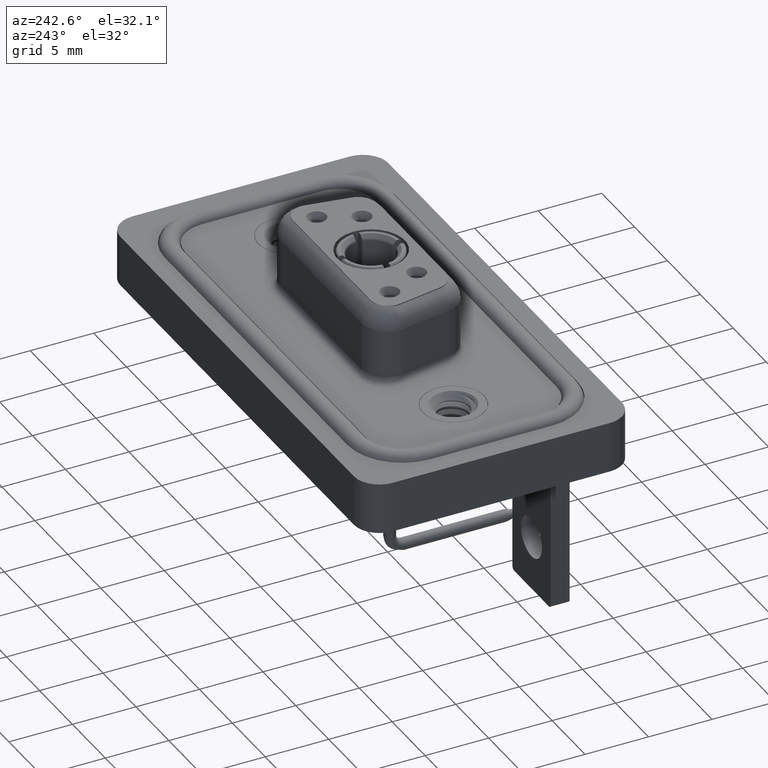
[diagram: clean part render]
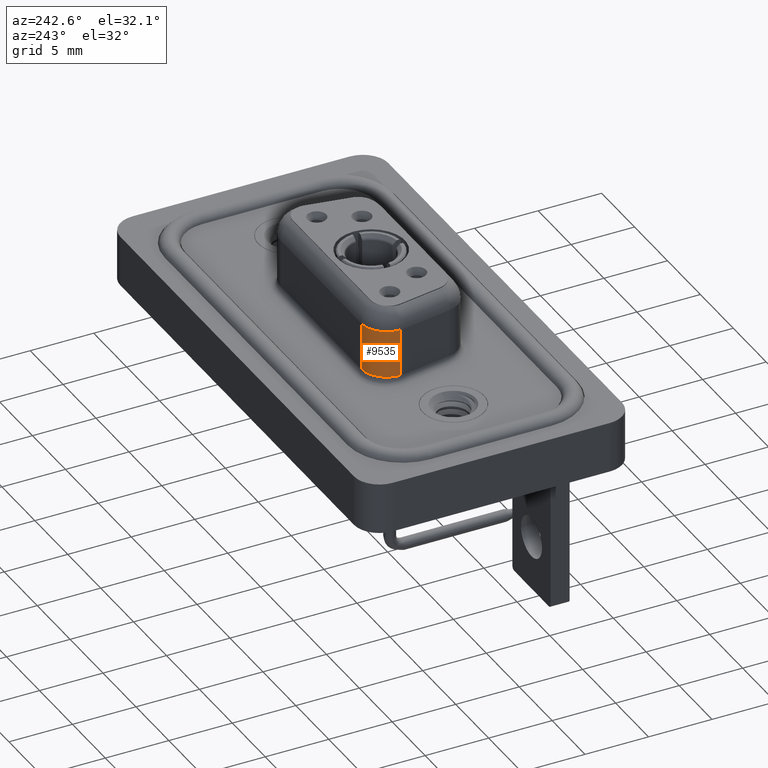
[diagram: same view with one face highlighted and labeled with its STEP entity id]
A machine part, auxiliary view. The second image highlights one B-rep face of the part: STEP entity #9535.
In plain terms, the highlighted cylindrical surface (edge-blend (fillet) strip) has radius 2 mm, axis along (-0, -0, -1).
Its self-contained STEP definition (entity closure, byte-faithful):
#453 = EDGE_CURVE ( 'NONE', #13363, #7746, #19176, .T. ) ;
#520 = CARTESIAN_POINT ( 'NONE',  ( 4.350000000000002309, 1.949999999999999512, 0.8999999999999998002 ) ) ;
#879 = LINE ( 'NONE', #4323, #5845 ) ;
#1258 = CARTESIAN_POINT ( 'NONE',  ( 6.350000000000002309, 1.949999999999999512, 6.400000000000000355 ) ) ;
#1387 = DIRECTION ( 'NONE',  ( 1.000000000000000000, 0.000000000000000000, 0.000000000000000000 ) ) ;
#2135 = VERTEX_POINT ( 'NONE', #12586 ) ;
#2955 = DIRECTION ( 'NONE',  ( -0.000000000000000000, -0.000000000000000000, -1.000000000000000000 ) ) ;
#3179 = CARTESIAN_POINT ( 'NONE',  ( 4.350000000000002309, 1.949999999999999512, 4.650000000000000355 ) ) ;
#3631 = DIRECTION ( 'NONE',  ( -1.000000000000000000, 0.000000000000000000, 0.000000000000000000 ) ) ;
#3835 = DIRECTION ( 'NONE',  ( -0.000000000000000000, -0.000000000000000000, -1.000000000000000000 ) ) ;
#4323 = CARTESIAN_POINT ( 'NONE',  ( 6.350000000000002309, 3.949999999999999734, 6.400000000000000355 ) ) ;
#5068 = AXIS2_PLACEMENT_3D ( 'NONE', #1258, #2955, #9317 ) ;
#5723 = ORIENTED_EDGE ( 'NONE', *, *, #12673, .T. ) ;
#5845 = VECTOR ( 'NONE', #10691, 1000.000000000000000 ) ;
#6072 = CARTESIAN_POINT ( 'NONE',  ( 4.350000000000002309, 1.949999999999999512, 6.400000000000000355 ) ) ;
#6288 = CYLINDRICAL_SURFACE ( 'NONE', #5068, 2.000000000000000000 ) ;
#7357 = CIRCLE ( 'NONE', #15039, 2.000000000000000000 ) ;
#7408 = EDGE_CURVE ( 'NONE', #20044, #7746, #14458, .T. ) ;
#7539 = EDGE_LOOP ( 'NONE', ( #7888, #5723, #17580, #13938 ) ) ;
#7746 = VERTEX_POINT ( 'NONE', #520 ) ;
#7888 = ORIENTED_EDGE ( 'NONE', *, *, #453, .F. ) ;
#8528 = CARTESIAN_POINT ( 'NONE',  ( 6.350000000000002309, 1.949999999999999512, 4.650000000000000355 ) ) ;
#9211 = FACE_OUTER_BOUND ( 'NONE', #7539, .T. ) ;
#9317 = DIRECTION ( 'NONE',  ( -1.000000000000000000, 0.000000000000000000, 0.000000000000000000 ) ) ;
#9340 = CARTESIAN_POINT ( 'NONE',  ( 6.350000000000002309, 1.949999999999999512, 0.8999999999999998002 ) ) ;
#9535 = ADVANCED_FACE ( 'NONE', ( #9211 ), #6288, .T. ) ;
#10691 = DIRECTION ( 'NONE',  ( -0.000000000000000000, -0.000000000000000000, -1.000000000000000000 ) ) ;
#11990 = CARTESIAN_POINT ( 'NONE',  ( 6.350000000000002309, 3.949999999999999734, 0.8999999999999998002 ) ) ;
#12586 = CARTESIAN_POINT ( 'NONE',  ( 6.350000000000002309, 3.949999999999999734, 4.650000000000000355 ) ) ;
#12673 = EDGE_CURVE ( 'NONE', #13363, #2135, #7357, .T. ) ;
#13363 = VERTEX_POINT ( 'NONE', #3179 ) ;
#13648 = VECTOR ( 'NONE', #20644, 1000.000000000000000 ) ;
#13938 = ORIENTED_EDGE ( 'NONE', *, *, #7408, .T. ) ;
#14458 = CIRCLE ( 'NONE', #18135, 2.000000000000000888 ) ;
#14509 = EDGE_CURVE ( 'NONE', #2135, #20044, #879, .T. ) ;
#15039 = AXIS2_PLACEMENT_3D ( 'NONE', #8528, #3835, #3631 ) ;
#15730 = DIRECTION ( 'NONE',  ( 0.000000000000000000, 0.000000000000000000, 1.000000000000000000 ) ) ;
#17580 = ORIENTED_EDGE ( 'NONE', *, *, #14509, .T. ) ;
#18135 = AXIS2_PLACEMENT_3D ( 'NONE', #9340, #15730, #1387 ) ;
#19176 = LINE ( 'NONE', #6072, #13648 ) ;
#20044 = VERTEX_POINT ( 'NONE', #11990 ) ;
#20644 = DIRECTION ( 'NONE',  ( -0.000000000000000000, -0.000000000000000000, -1.000000000000000000 ) ) ;